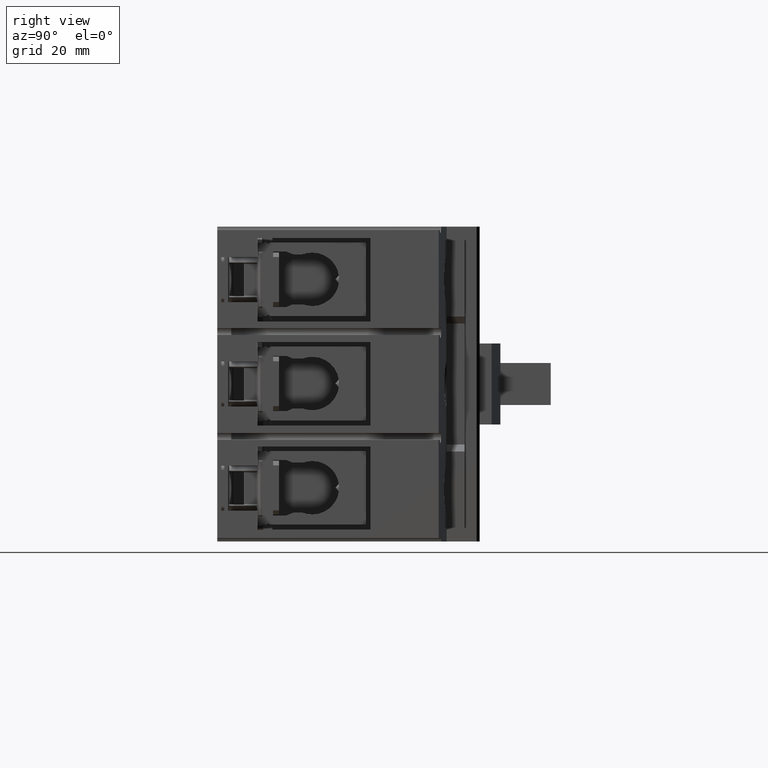
[diagram: clean part render]
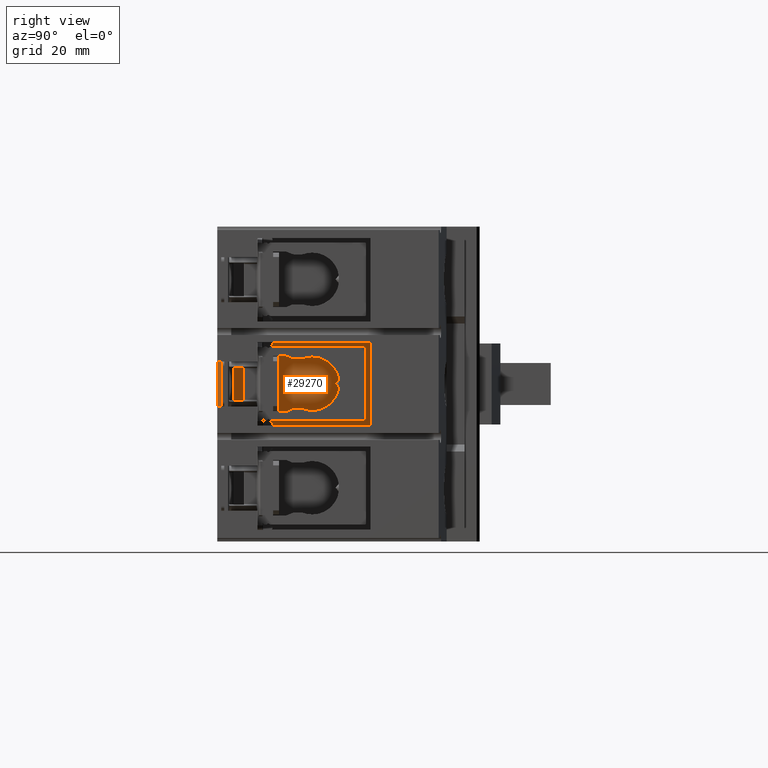
[diagram: same view with one face highlighted and labeled with its STEP entity id]
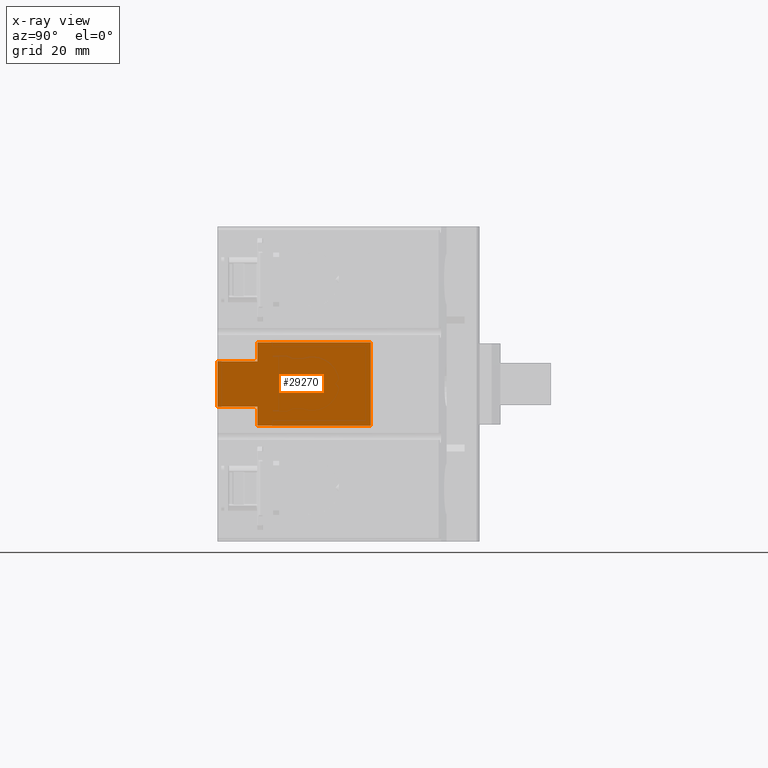
[diagram: x-ray of the same camera — body ghosted, the highlighted face saturated]
A machine part, right view. The second image highlights one B-rep face of the part: STEP entity #29270.
The next image is the same camera in x-ray: the body ghosted, the highlighted face saturated — about 0% of this face is hidden behind the body in this view.
In plain terms, the highlighted planar face has unit normal (-1, 0, 0).
Its self-contained STEP definition (entity closure, byte-faithful):
#2698 = VECTOR ( 'NONE', #35790, 39.37007874015748143 ) ;
#4552 = EDGE_CURVE ( 'NONE', #53303, #19099, #46036, .T. ) ;
#5958 = VECTOR ( 'NONE', #50559, 39.37007874015748143 ) ;
#6193 = DIRECTION ( 'NONE',  ( 0.000000000000000000, 1.000000000000000000, -0.000000000000000000 ) ) ;
#6751 = VECTOR ( 'NONE', #21337, 39.37007874015748143 ) ;
#6956 = LINE ( 'NONE', #11956, #27077 ) ;
#7172 = VERTEX_POINT ( 'NONE', #65458 ) ;
#7595 = DIRECTION ( 'NONE',  ( -0.000000000000000000, -0.000000000000000000, -1.000000000000000000 ) ) ;
#11745 = ORIENTED_EDGE ( 'NONE', *, *, #24079, .F. ) ;
#11956 = CARTESIAN_POINT ( 'NONE',  ( 2.362204724409448620, 0.000000000000000000, 0.5472440944881891145 ) ) ;
#12072 = VECTOR ( 'NONE', #40223, 39.37007874015748143 ) ;
#13749 = LINE ( 'NONE', #53050, #14213 ) ;
#14213 = VECTOR ( 'NONE', #7595, 39.37007874015748143 ) ;
#14646 = CARTESIAN_POINT ( 'NONE',  ( 2.362204724409448620, 0.000000000000000000, 0.2952755905511810774 ) ) ;
#14923 = DIRECTION ( 'NONE',  ( -0.000000000000000000, -1.000000000000000000, 0.000000000000000000 ) ) ;
#15482 = DIRECTION ( 'NONE',  ( 0.000000000000000000, 1.000000000000000000, -0.000000000000000000 ) ) ;
#15554 = CARTESIAN_POINT ( 'NONE',  ( 2.362204724409448620, 0.5244094488188976166, -0.2952755905511810774 ) ) ;
#16677 = PLANE ( 'NONE',  #29651 ) ;
#16742 = CARTESIAN_POINT ( 'NONE',  ( 2.362204724409448620, 0.5244094488188976166, 1.368110236220472675 ) ) ;
#17089 = VECTOR ( 'NONE', #14923, 39.37007874015748143 ) ;
#17697 = LINE ( 'NONE', #53907, #2698 ) ;
#18964 = VECTOR ( 'NONE', #15482, 39.37007874015748143 ) ;
#19099 = VERTEX_POINT ( 'NONE', #19467 ) ;
#19467 = CARTESIAN_POINT ( 'NONE',  ( 2.362204724409448620, 0.5244094488188976166, 0.5472440944881891145 ) ) ;
#21337 = DIRECTION ( 'NONE',  ( 0.000000000000000000, -1.000000000000000000, -0.000000000000000000 ) ) ;
#21366 = EDGE_CURVE ( 'NONE', #36455, #53303, #44753, .T. ) ;
#22603 = EDGE_LOOP ( 'NONE', ( #36860, #26428, #32405, #46789, #67157, #57789, #23787, #11745 ) ) ;
#23232 = FACE_OUTER_BOUND ( 'NONE', #22603, .T. ) ;
#23787 = ORIENTED_EDGE ( 'NONE', *, *, #55898, .T. ) ;
#24079 = EDGE_CURVE ( 'NONE', #57231, #52719, #74160, .T. ) ;
#26225 = VERTEX_POINT ( 'NONE', #37518 ) ;
#26428 = ORIENTED_EDGE ( 'NONE', *, *, #56627, .F. ) ;
#27077 = VECTOR ( 'NONE', #6193, 39.37007874015748143 ) ;
#27859 = CARTESIAN_POINT ( 'NONE',  ( 2.362204724409448620, 0.000000000000000000, 1.368110236220472675 ) ) ;
#29270 = ADVANCED_FACE ( 'NONE', ( #23232 ), #16677, .F. ) ;
#29651 = AXIS2_PLACEMENT_3D ( 'NONE', #27859, #40154, #56797 ) ;
#32405 = ORIENTED_EDGE ( 'NONE', *, *, #61359, .F. ) ;
#33174 = CARTESIAN_POINT ( 'NONE',  ( 2.362204724409448620, 0.5244094488188976166, -0.5472440944881891145 ) ) ;
#35790 = DIRECTION ( 'NONE',  ( 0.000000000000000000, 0.000000000000000000, 1.000000000000000000 ) ) ;
#36455 = VERTEX_POINT ( 'NONE', #14646 ) ;
#36860 = ORIENTED_EDGE ( 'NONE', *, *, #67155, .F. ) ;
#37518 = CARTESIAN_POINT ( 'NONE',  ( 2.362204724409448620, 2.011811023622047223, 0.5472440944881891145 ) ) ;
#38938 = CARTESIAN_POINT ( 'NONE',  ( 2.362204724409448620, 0.000000000000000000, 0.2952755905511810774 ) ) ;
#40154 = DIRECTION ( 'NONE',  ( -1.000000000000000000, 0.000000000000000000, 0.000000000000000000 ) ) ;
#40223 = DIRECTION ( 'NONE',  ( 0.000000000000000000, 0.000000000000000000, 1.000000000000000000 ) ) ;
#44175 = LINE ( 'NONE', #67720, #17089 ) ;
#44753 = LINE ( 'NONE', #38938, #18964 ) ;
#46036 = LINE ( 'NONE', #16742, #12072 ) ;
#46789 = ORIENTED_EDGE ( 'NONE', *, *, #64007, .F. ) ;
#49256 = CARTESIAN_POINT ( 'NONE',  ( 2.362204724409448620, 0.5244094488188976166, 0.2952755905511810774 ) ) ;
#50559 = DIRECTION ( 'NONE',  ( -0.000000000000000000, 0.000000000000000000, -1.000000000000000000 ) ) ;
#52719 = VERTEX_POINT ( 'NONE', #53241 ) ;
#53050 = CARTESIAN_POINT ( 'NONE',  ( 2.362204724409448620, 2.011811023622047223, 1.368110236220472675 ) ) ;
#53241 = CARTESIAN_POINT ( 'NONE',  ( 2.362204724409448620, 0.000000000000000000, -0.2952755905511810774 ) ) ;
#53303 = VERTEX_POINT ( 'NONE', #49256 ) ;
#53907 = CARTESIAN_POINT ( 'NONE',  ( 2.362204724409448620, 0.5244094488188976166, 1.368110236220472675 ) ) ;
#55898 = EDGE_CURVE ( 'NONE', #36455, #52719, #62856, .T. ) ;
#56627 = EDGE_CURVE ( 'NONE', #7172, #70425, #44175, .T. ) ;
#56797 = DIRECTION ( 'NONE',  ( 0.000000000000000000, 0.000000000000000000, 1.000000000000000000 ) ) ;
#57231 = VERTEX_POINT ( 'NONE', #70339 ) ;
#57789 = ORIENTED_EDGE ( 'NONE', *, *, #21366, .F. ) ;
#61359 = EDGE_CURVE ( 'NONE', #26225, #7172, #13749, .T. ) ;
#62856 = LINE ( 'NONE', #74809, #5958 ) ;
#64007 = EDGE_CURVE ( 'NONE', #19099, #26225, #6956, .T. ) ;
#65458 = CARTESIAN_POINT ( 'NONE',  ( 2.362204724409448620, 2.011811023622047223, -0.5472440944881891145 ) ) ;
#67155 = EDGE_CURVE ( 'NONE', #70425, #57231, #17697, .T. ) ;
#67157 = ORIENTED_EDGE ( 'NONE', *, *, #4552, .F. ) ;
#67720 = CARTESIAN_POINT ( 'NONE',  ( 2.362204724409448620, 0.000000000000000000, -0.5472440944881891145 ) ) ;
#70339 = CARTESIAN_POINT ( 'NONE',  ( 2.362204724409448620, 0.5244094488188976166, -0.2952755905511810774 ) ) ;
#70425 = VERTEX_POINT ( 'NONE', #33174 ) ;
#74160 = LINE ( 'NONE', #15554, #6751 ) ;
#74809 = CARTESIAN_POINT ( 'NONE',  ( 2.362204724409448620, 0.000000000000000000, 0.000000000000000000 ) ) ;